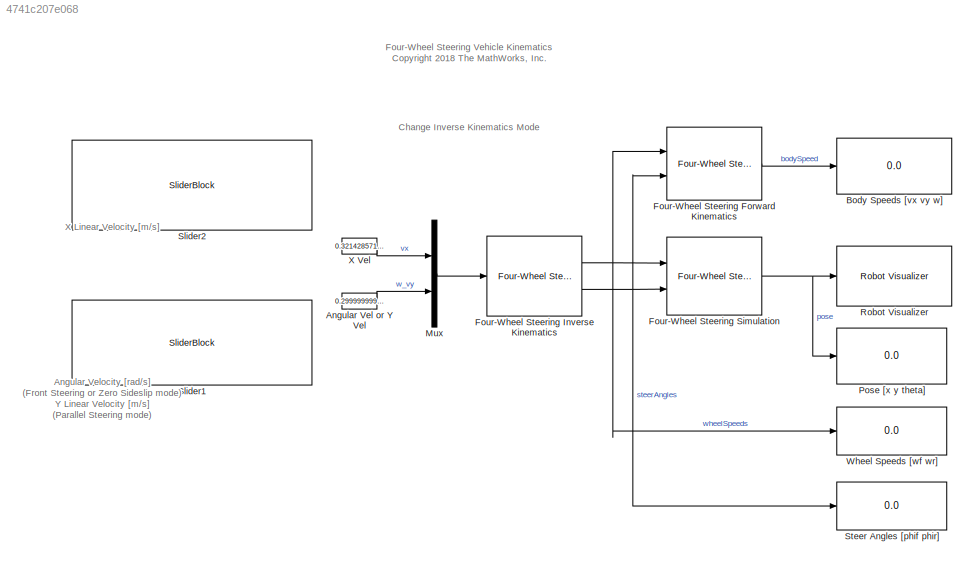
MODEL slx_4741c207e068
KIND model
CONFIG AbsTol = auto
CONFIG EnableMultiTasking = on
CONFIG FixedStep = 0.01
CONFIG MaxStep = auto
CONFIG MinStep = auto
CONFIG PreLoadFcn = sampleTime = 0.05;\n\n% Vehicle Parameters\nwheelRadius = 0.1;\nfrontWheelDist = 0.25;\nrearWheelDist = 0.25;
CONFIG RelTol = 1e-3
CONFIG SampleTimeConstraint = Unconstrained
CONFIG Solver = VariableStepAuto
CONFIG SolverName = VariableStepAuto
CONFIG StartTime = 0.0
CONFIG StopTime = inf
BLOCK [Constant] Angular Vel or Y Vel
  Value = 0.2999999999999998
BLOCK [Display] Body Speeds [vx vy w]
  Decimation = 1
  Ports = [1]
BLOCK [Reference] Four-Wheel Steering Forward Kinematics  REF=mobileRoboticsLib/Kinematic Models/Four-Wheel Steering/Four-Wheel Steering
Forward Kinematics
  Ports = [2, 1]
  SourceBlock = mobileRoboticsLib/Kinematic Models/Four-Wheel Steering/Four-Wheel Steering\nForward Kinematics
  SourceProductName = Mobile Robotics Simulation Library
  SourceType = Four-Wheel Steering Forward Kinematics
BLOCK [Reference] Four-Wheel Steering Inverse Kinematics  REF=mobileRoboticsLib/Kinematic Models/Four-Wheel Steering/Four-Wheel Steering
Inverse Kinematics
  Ports = [1, 2]
  SourceBlock = mobileRoboticsLib/Kinematic Models/Four-Wheel Steering/Four-Wheel Steering\nInverse Kinematics
  SourceProductName = Mobile Robotics Simulation Library
  SourceType = Four-Wheel Steering Inverse Kinematics
BLOCK [Reference] Four-Wheel Steering Simulation  REF=mobileRoboticsLib/Kinematic Models/Four-Wheel Steering/Four-Wheel Steering Simulation
  Ports = [2, 1]
  SourceBlock = mobileRoboticsLib/Kinematic Models/Four-Wheel Steering/Four-Wheel Steering Simulation
  SourceProductName = Mobile Robotics Simulation Library
  SourceType = Four-Wheel Steering Simulation
BLOCK [Mux] Mux
  DisplayOption = bar
  Inputs = 2
  Ports = [2, 1]
BLOCK [Display] Pose [x y theta]
  Decimation = 1
  Ports = [1]
BLOCK [Reference] Robot Visualizer  REF=mobileRoboticsLib/Environments/Robot Visualizer
  Ports = [1]
  Priority = 99
  SourceBlock = mobileRoboticsLib/Environments/Robot Visualizer
  SourceProductName = Mobile Robotics Simulation Library
  SourceType = Visualizer2D
BLOCK [SliderBlock] Slider1
  ScaleMax = 1.5
  ScaleMin = -1.5
BLOCK [SliderBlock] Slider2
  ScaleMax = 1.5
  ScaleMin = -1.5
BLOCK [Display] Steer Angles [phif phir]
  Decimation = 1
  Ports = [1]
BLOCK [Display] Wheel Speeds [wf wr]
  Decimation = 1
  Ports = [1]
BLOCK [Constant] X Vel
  Value = 0.3214285714285712
ANNOTATION (root): Change Inverse Kinematics Mode
ANNOTATION (root): Angular Velocity [rad/s] (Front Steering or Zero Sideslip mode) Y Linear Velocity [m/s] (Parallel Steering mode)
ANNOTATION (root): Four-Wheel Steering Vehicle Kinematics <copyright redacted>
ANNOTATION (root): X Linear Velocity [m/s]
LINE Angular Vel or Y Vel:1 -> Mux:2
LINE Four-Wheel Steering Forward Kinematics:1 -> Body Speeds [vx vy w]:1
NET Four-Wheel Steering Inverse Kinematics:1 -> Four-Wheel Steering Forward Kinematics:1, Four-Wheel Steering Simulation:1, Wheel Speeds [wf wr]:1
NET Four-Wheel Steering Inverse Kinematics:2 -> Four-Wheel Steering Forward Kinematics:2, Four-Wheel Steering Simulation:2, Steer Angles [phif phir]:1
NET Four-Wheel Steering Simulation:1 -> Pose [x y theta]:1, Robot Visualizer:1
LINE Mux:1 -> Four-Wheel Steering Inverse Kinematics:1
LINE X Vel:1 -> Mux:1
note: NET lines group one-source signal fan-out (src -> all destinations, sorted); 1:1 wires keep LINE
